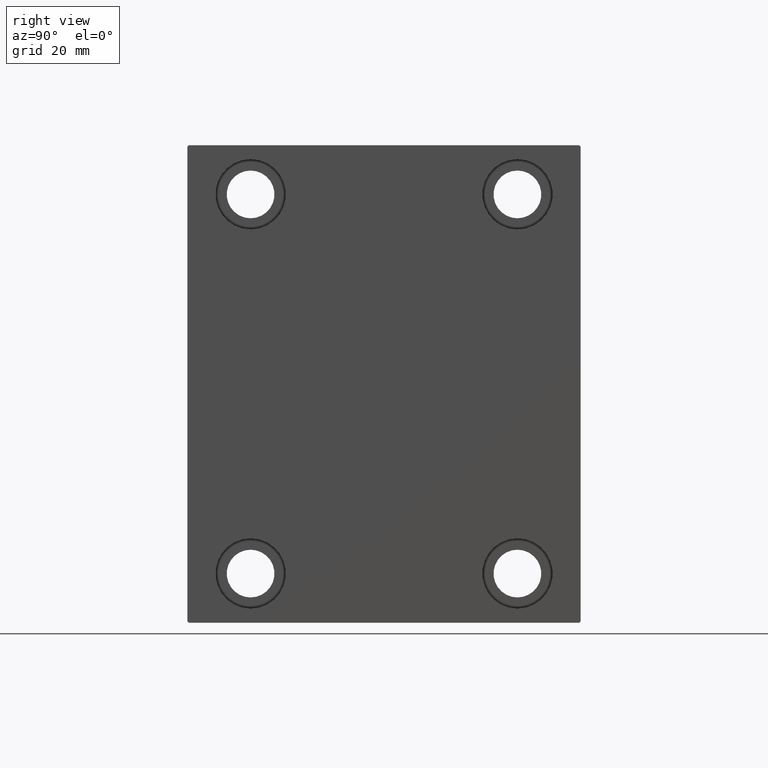
[diagram: clean part render]
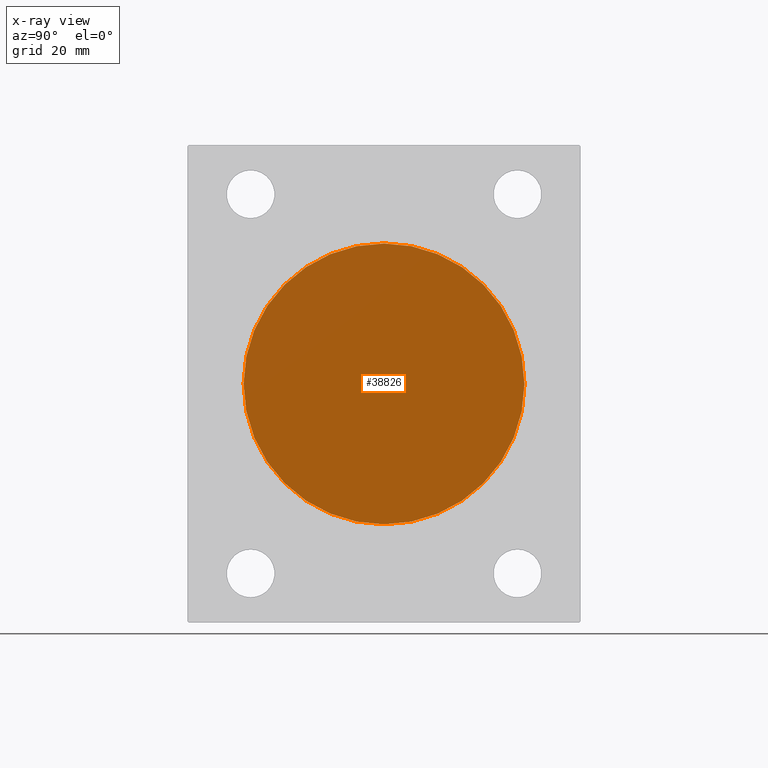
[diagram: x-ray — body ghosted, one internal face saturated and labeled with its STEP entity id]
A machine part, right view, then the same camera in x-ray: the body is ghosted and one INTERNAL B-rep face — a face not visible from any outside direction — is saturated and labeled: STEP entity #38826.
In plain terms, the highlighted planar face has unit normal (-1, 0, 0).
Its self-contained STEP definition (entity closure, byte-faithful):
#3036 = AXIS2_PLACEMENT_3D ( 'NONE', #17344, #20904, #21328 ) ;
#3616 = DIRECTION ( 'NONE',  ( 0.000000000000000000, 0.000000000000000000, 1.000000000000000000 ) ) ;
#6954 = DIRECTION ( 'NONE',  ( -1.000000000000000000, 0.000000000000000000, 0.000000000000000000 ) ) ;
#11958 = ORIENTED_EDGE ( 'NONE', *, *, #14874, .T. ) ;
#14874 = EDGE_CURVE ( 'NONE', #23752, #15597, #28290, .T. ) ;
#15515 = EDGE_LOOP ( 'NONE', ( #11958, #40345 ) ) ;
#15597 = VERTEX_POINT ( 'NONE', #21170 ) ;
#17344 = CARTESIAN_POINT ( 'NONE',  ( 51.00000000000000000, 0.000000000000000000, 0.000000000000000000 ) ) ;
#17623 = PLANE ( 'NONE',  #42940 ) ;
#18857 = CARTESIAN_POINT ( 'NONE',  ( 51.00000000000000000, 0.000000000000000000, 0.000000000000000000 ) ) ;
#20904 = DIRECTION ( 'NONE',  ( -1.000000000000000000, 0.000000000000000000, 0.000000000000000000 ) ) ;
#21170 = CARTESIAN_POINT ( 'NONE',  ( 51.00000000000000000, 6.123233995736766085E-15, -50.00000000000000000 ) ) ;
#21328 = DIRECTION ( 'NONE',  ( 0.000000000000000000, 0.000000000000000000, 1.000000000000000000 ) ) ;
#21903 = AXIS2_PLACEMENT_3D ( 'NONE', #18857, #33116, #22428 ) ;
#22214 = CIRCLE ( 'NONE', #3036, 50.00000000000000000 ) ;
#22428 = DIRECTION ( 'NONE',  ( 0.000000000000000000, 0.000000000000000000, 1.000000000000000000 ) ) ;
#23752 = VERTEX_POINT ( 'NONE', #24030 ) ;
#24030 = CARTESIAN_POINT ( 'NONE',  ( 51.00000000000000000, 0.000000000000000000, 50.00000000000000000 ) ) ;
#28290 = CIRCLE ( 'NONE', #21903, 50.00000000000000000 ) ;
#30538 = CARTESIAN_POINT ( 'NONE',  ( 51.00000000000000000, 0.000000000000000000, 0.000000000000000000 ) ) ;
#31965 = EDGE_CURVE ( 'NONE', #15597, #23752, #22214, .T. ) ;
#33116 = DIRECTION ( 'NONE',  ( -1.000000000000000000, 0.000000000000000000, 0.000000000000000000 ) ) ;
#38826 = ADVANCED_FACE ( 'NONE', ( #40743 ), #17623, .T. ) ;
#40345 = ORIENTED_EDGE ( 'NONE', *, *, #31965, .T. ) ;
#40743 = FACE_OUTER_BOUND ( 'NONE', #15515, .T. ) ;
#42940 = AXIS2_PLACEMENT_3D ( 'NONE', #30538, #6954, #3616 ) ;